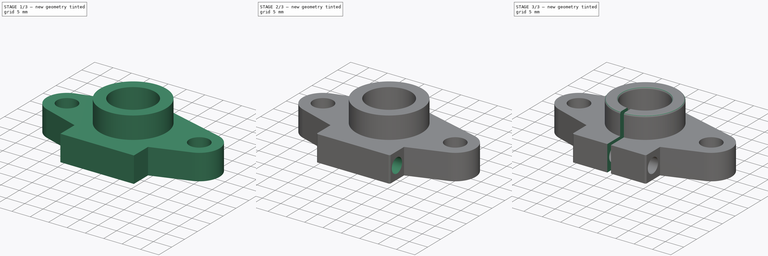
[diagram: build sequence overview — one tinted view per stage of 3, left to right]
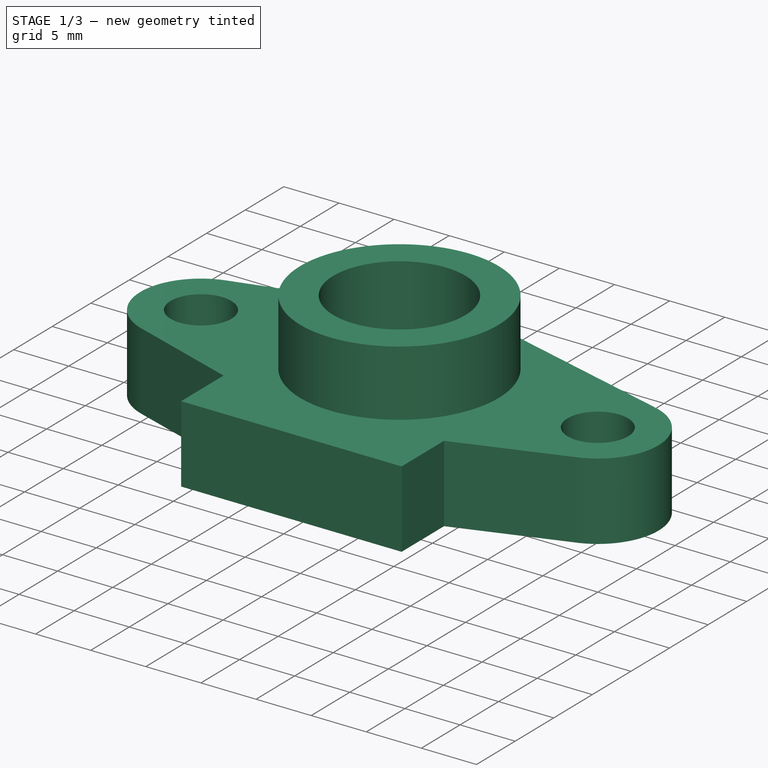
[diagram: stage 1 of 3 — iso view after this stage's code; geometry added in this stage tinted green]
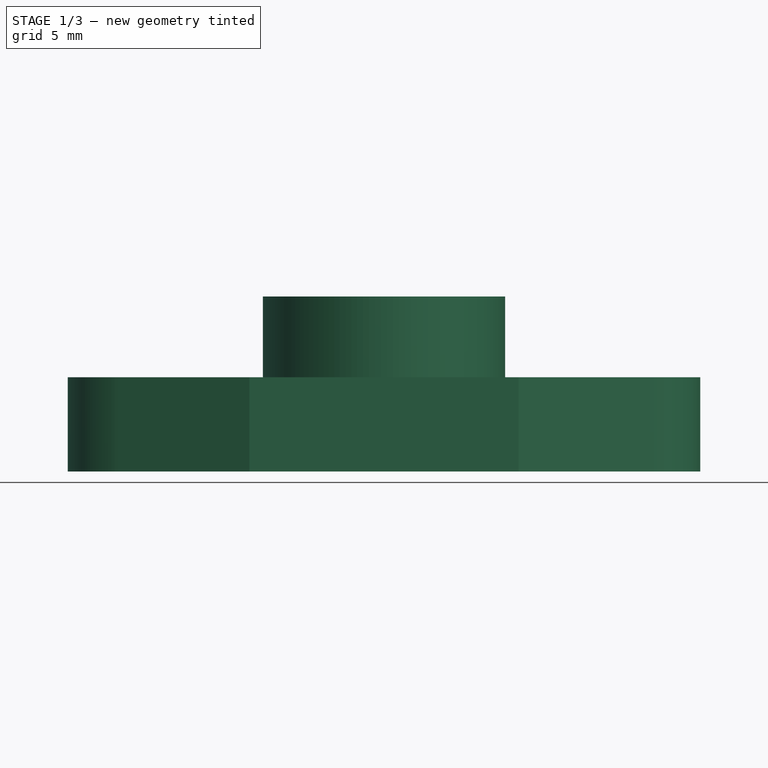
[diagram: stage 1 of 3 — front view after this stage's code; geometry added in this stage tinted green]
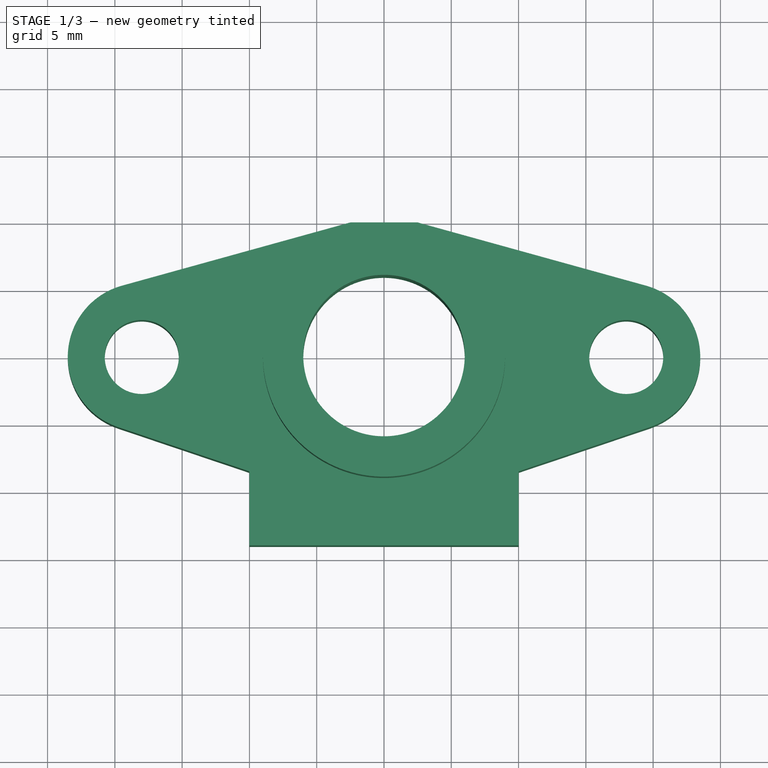
[diagram: stage 1 of 3 — top view after this stage's code; geometry added in this stage tinted green]
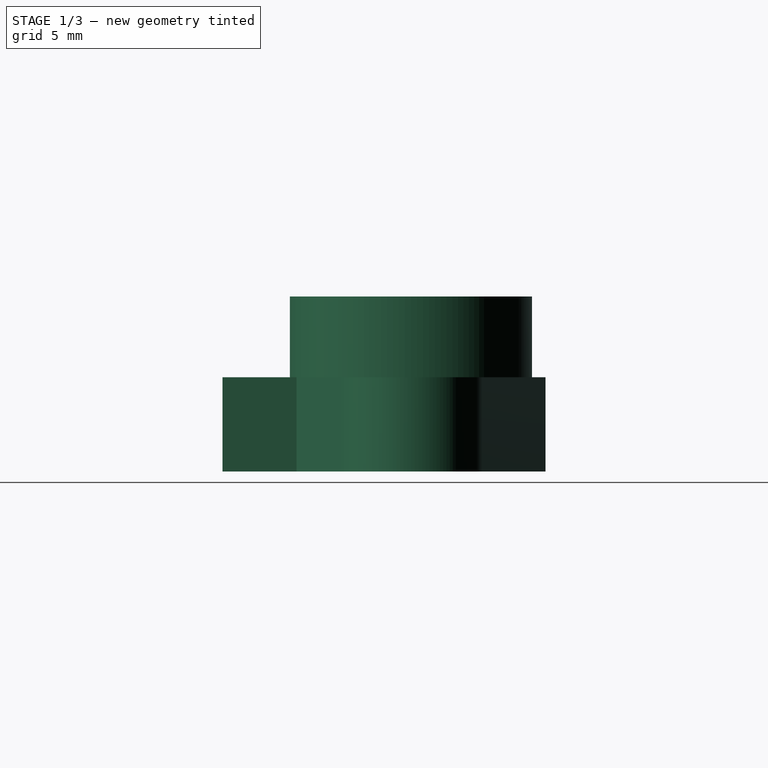
[diagram: stage 1 of 3 — right view after this stage's code; geometry added in this stage tinted green]
FCSTD DOCUMENT  (FreeCAD 1.0R39319 (Git))
Label: ShaftSupport__SHF12
License: All rights reserved
LicenseURL: http://en.wikipedia.org/wiki/All_rights_reserved
objects: Sketcher::SketchObject×4, PartDesign::Pad×2, PartDesign::Fillet×2, PartDesign::Pocket×2, PartDesign::Body×1
note: 27 computed .brp shape members not serialized (recipe doc carries the construction recipe); baked Part::Feature solids carry a one-line shape summary decoded from their .brp

FEATURE [Sketcher::SketchObject] Sketch
  ArcFitTolerance = 0
  AttachmentSupport = -> [XY_Plane]
  FullyConstrained = true
  MakeInternals = false
  MapMode = 5
  sketch-geometry (13):
    g0: Circle CenterX=0 CenterY=0 CenterZ=0 NormalX=0 NormalY=0 NormalZ=1 AngleXU=0 Radius=6
    g1: Circle CenterX=18 CenterY=0 CenterZ=0 NormalX=0 NormalY=0 NormalZ=1 AngleXU=0 Radius=2.75
    g2: Circle CenterX=-18 CenterY=0 CenterZ=0 NormalX=0 NormalY=0 NormalZ=1 AngleXU=0 Radius=2.75
    g3: LineSegment StartX=-2.5 StartY=10 StartZ=0 EndX=2.5 EndY=10 EndZ=0
    g4: ArcOfCircle CenterX=-18 CenterY=0 CenterZ=0 NormalX=0 NormalY=0 NormalZ=1 AngleXU=0 Radius=5.5 StartAngle=1.84099 EndAngle=4.38733
    g5: ArcOfCircle CenterX=18 CenterY=0 CenterZ=0 NormalX=0 NormalY=0 NormalZ=1 AngleXU=0 Radius=5.5 StartAngle=5.03744 EndAngle=7.58379
    g6: LineSegment StartX=19.468 StartY=5.30046 StartZ=0 EndX=2.5 EndY=10 EndZ=0
    g7: LineSegment StartX=-19.468 StartY=5.30046 StartZ=0 EndX=-2.5 EndY=10 EndZ=0
    g8: LineSegment StartX=-10 StartY=-14 StartZ=0 EndX=10 EndY=-14 EndZ=0
    g9: LineSegment StartX=-10 StartY=-14 StartZ=0 EndX=-10 EndY=-8.5 EndZ=0
    g10: LineSegment StartX=10 StartY=-14 StartZ=0 EndX=10 EndY=-8.5 EndZ=0
    g11: LineSegment StartX=19.7565 StartY=-5.21198 StartZ=0 EndX=10 EndY=-8.5 EndZ=0
    g12: LineSegment StartX=-10 StartY=-8.5 StartZ=0 EndX=-19.7565 EndY=-5.21198 EndZ=0
  constraints (30):
    c: Coincident(g0,g-1)
    c: Diameter(g0) = 12
    c: PointOnObject(g1,g-1)
    c: Symmetric(g2,g1,g-2)
    c: Equal(g1,g2)
    c: Diameter(g1) = 5.5
    c: DistanceX(g2,g1) = 36
    c: Symmetric(g3,g3,g-2)
    c: DistanceY(g3) = 10
    c: Coincident(g4,g2)
    c: Coincident(g5,g1)
    c: Coincident(g6,g3)
    c: Coincident(g7,g3)
    c: Equal(g4,g5)
    c: Diameter(g5) = 11
    c: Symmetric(g8,g8,g-2)
    c: DistanceX(g8,g8) = 20
    c: Tangent(g7,g4) = 1.5708
    c: DistanceX(g3,g3) = 5
    c: DistanceY(g8,g0) = 14
    c: Coincident(g9,g8)
    c: Vertical(g9)
    c: Coincident(g10,g8)
    c: Coincident(g11,g10)
    c: Coincident(g12,g9)
    c: Tangent(g12,g4) = 1.5708
    c: Tangent(g11,g5) = 1.5708
    c: Tangent(g6,g5) = -1.5708
    c: Symmetric(g9,g10,g-2)
    c: DistanceY(g10,g10) = 5.5
FEATURE [PartDesign::Pad] Pad
  AllowMultiFace = false
  Direction = (0,0,1)
  Length = 7
  Length2 = 100
  Midplane = true
  Profile = -> Sketch
  Suppressed = false
  Type = 0
FEATURE [Sketcher::SketchObject] Sketch003
  ArcFitTolerance = 0
  FullyConstrained = true
  MakeInternals = false
  MapMode = 5
  Placement = pos=(0,0,3.5) rot=(0,0,1;0rad)
  sketch-geometry (2):
    g0: Circle CenterX=0 CenterY=0 CenterZ=0 NormalX=0 NormalY=0 NormalZ=1 AngleXU=0 Radius=9
    g1: Circle CenterX=0 CenterY=0 CenterZ=0 NormalX=0 NormalY=0 NormalZ=1 AngleXU=0 Radius=6
  constraints (4):
    c: Coincident(g0,g-1)
    c: Coincident(g1,g0)
    c: Diameter(g1) = 12
    c: Diameter(g0) = 18
FEATURE [PartDesign::Pad] Pad001
  AllowMultiFace = false
  BaseFeature = -> Pad
  Direction = (0,0,1)
  Length = 6
  Length2 = 100
  Profile = -> Sketch003
  Suppressed = false
  Type = 0
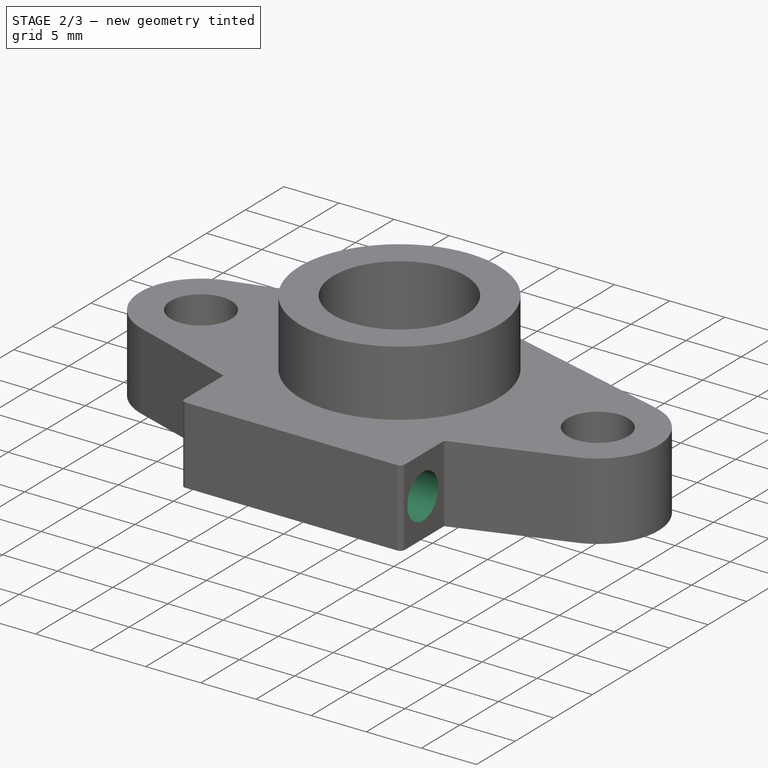
[diagram: stage 2 of 3 — iso view after this stage's code; geometry added in this stage tinted green]
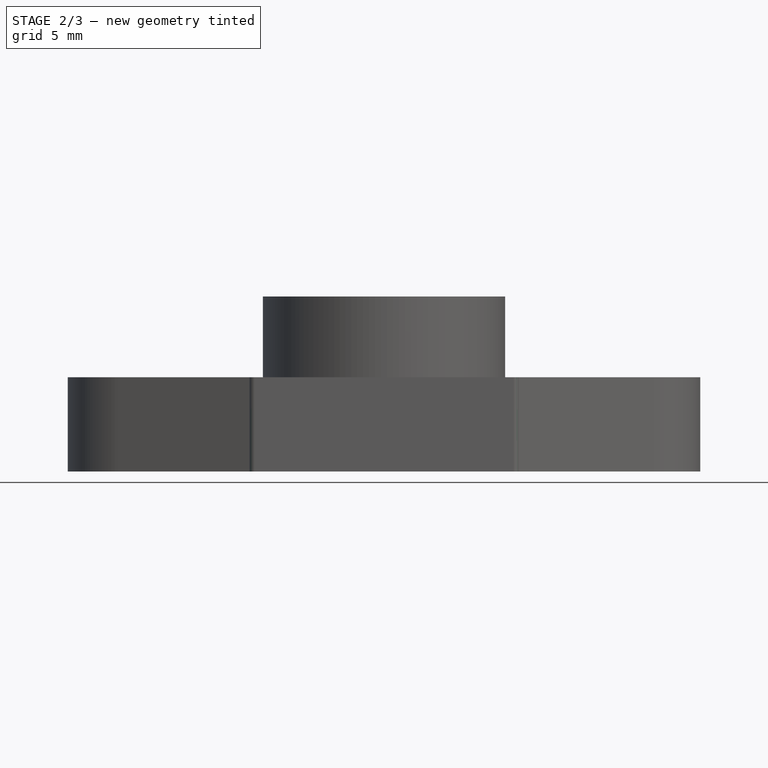
[diagram: stage 2 of 3 — front view after this stage's code; geometry added in this stage tinted green]
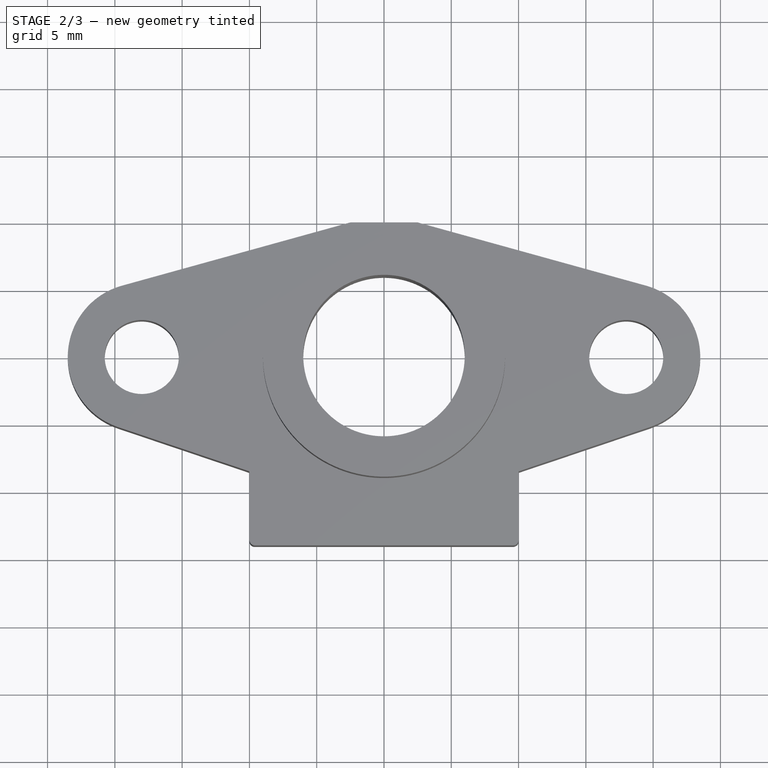
[diagram: stage 2 of 3 — top view after this stage's code; geometry added in this stage tinted green]
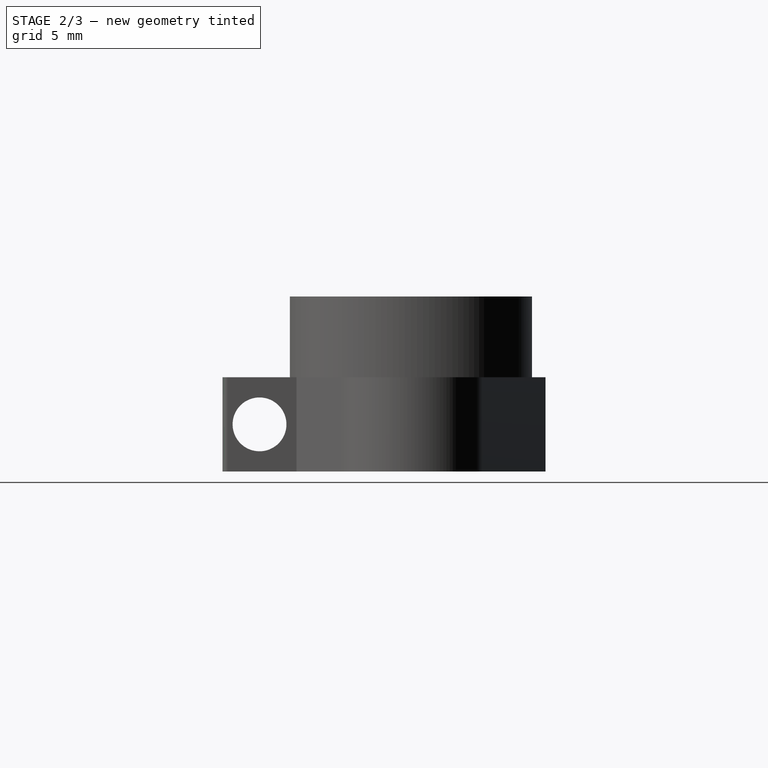
[diagram: stage 2 of 3 — right view after this stage's code; geometry added in this stage tinted green]
FEATURE [Sketcher::SketchObject] Sketch004
  ArcFitTolerance = 0
  AttachmentSupport = -> [Pad001]
  FullyConstrained = true
  MakeInternals = false
  MapMode = 5
  Placement = pos=(10,0,0) rot=(0.57735,0.57735,0.57735;2.0944rad)
  sketch-geometry (1):
    g0: Circle CenterX=-11.25 CenterY=0 CenterZ=0 NormalX=0 NormalY=0 NormalZ=1 AngleXU=0 Radius=2
  constraints (3):
    c: PointOnObject(g0,g-1)
    c: Diameter(g0) = 4
    c: DistanceX(g0,g-1) = 11.25
FEATURE [PartDesign::Fillet] Fillet
  Base = -> Pad001 [Edge35,Edge36]
  BaseFeature = -> Pad001
  Radius = 0.4
  Refine = true
  SupportTransform = false
  Suppressed = false
  UseAllEdges = false
FEATURE [PartDesign::Pocket] Pocket
  AllowMultiFace = false
  BaseFeature = -> Fillet
  Direction = (-1,0,0)
  Length = 5
  Length2 = 100
  Profile = -> Sketch004
  Suppressed = false
  Type = 1
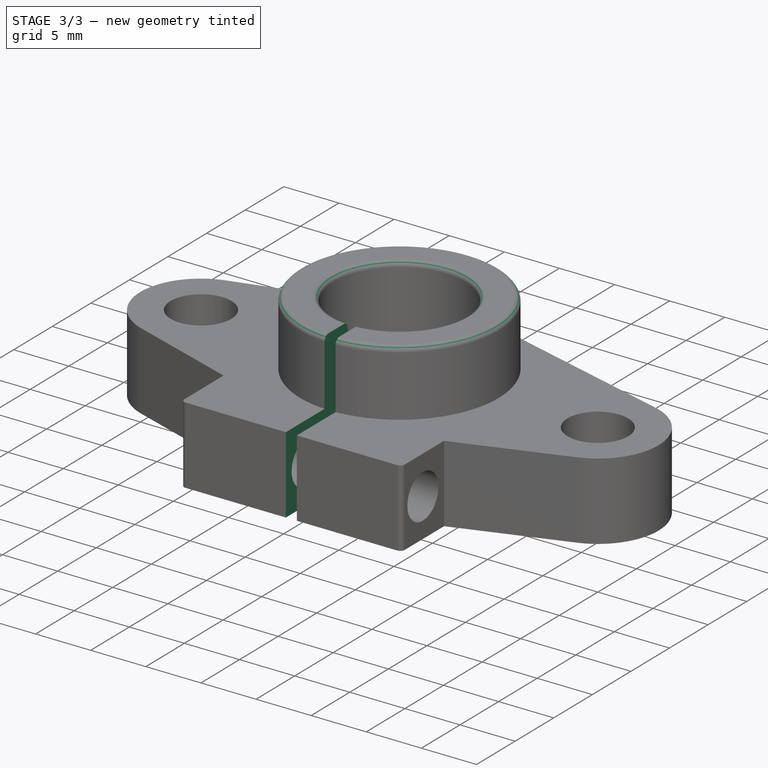
[diagram: stage 3 of 3 — iso view after this stage's code; geometry added in this stage tinted green]
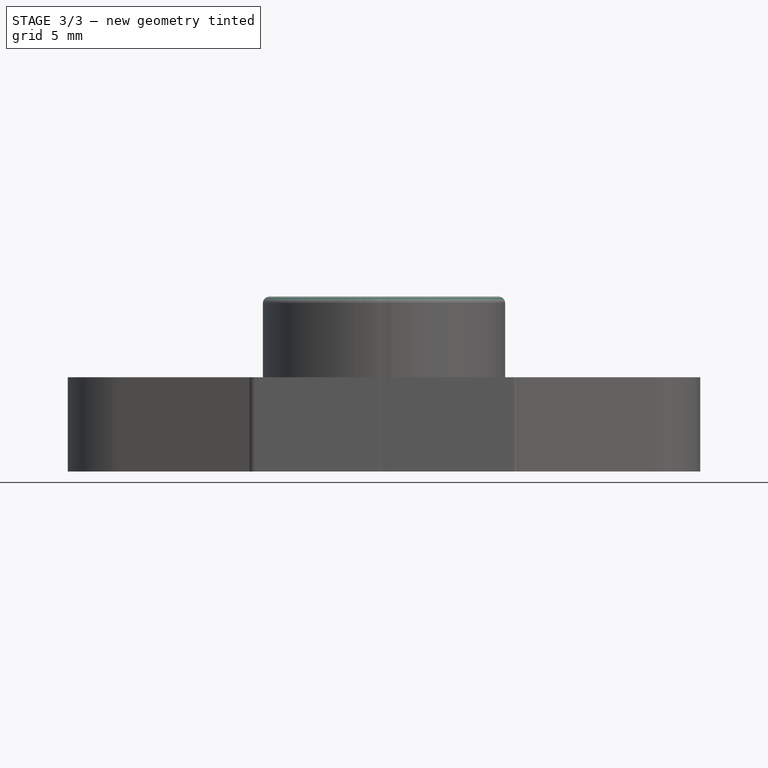
[diagram: stage 3 of 3 — front view after this stage's code; geometry added in this stage tinted green]
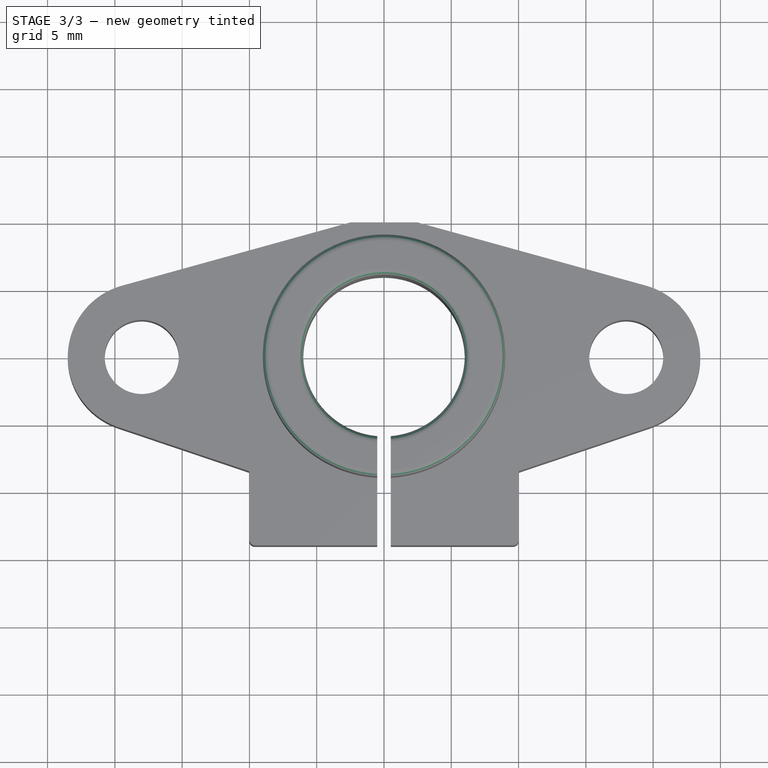
[diagram: stage 3 of 3 — top view after this stage's code; geometry added in this stage tinted green]
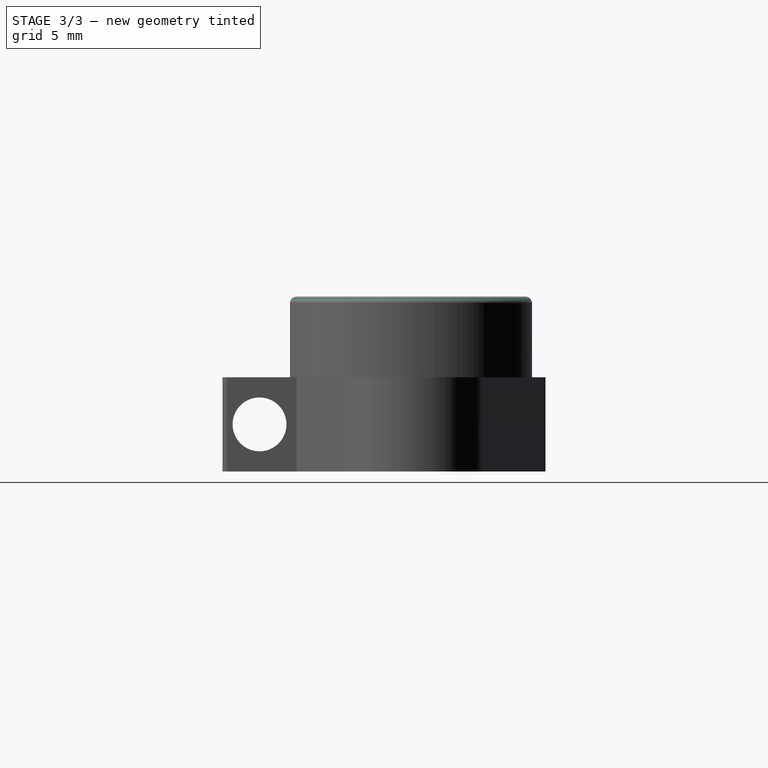
[diagram: stage 3 of 3 — right view after this stage's code; geometry added in this stage tinted green]
FEATURE [PartDesign::Fillet] Fillet001
  Base = -> Pocket [Edge50,Edge42]
  BaseFeature = -> Pocket
  Radius = 0.5
  Refine = true
  SupportTransform = false
  Suppressed = false
  UseAllEdges = false
FEATURE [Sketcher::SketchObject] Sketch005
  ArcFitTolerance = 0
  AttachmentSupport = -> [Fillet001]
  FullyConstrained = true
  MakeInternals = false
  MapMode = 5
  Placement = pos=(0,0,-3.5) rot=(1,0,0;3.14159rad)
  sketch-geometry (4):
    g0: LineSegment StartX=-0.5 StartY=15 StartZ=0 EndX=0.5 EndY=15 EndZ=0
    g1: LineSegment StartX=0.5 StartY=15 StartZ=0 EndX=0.5 EndY=5 EndZ=0
    g2: LineSegment StartX=0.5 StartY=5 StartZ=0 EndX=-0.5 EndY=5 EndZ=0
    g3: LineSegment StartX=-0.5 StartY=5 StartZ=0 EndX=-0.5 EndY=15 EndZ=0
  constraints (11):
    c: Coincident(g0,g1)
    c: Coincident(g1,g2)
    c: Coincident(g2,g3)
    c: Coincident(g3,g0)
    c: Horizontal(g2)
    c: Vertical(g1)
    c: Vertical(g3)
    c: Symmetric(g0,g0,g-2)
    c: DistanceX(g0,g0) = 1
    c: DistanceY(g1,g1) = 10
    c: DistanceY(g-1,g1) = 5
FEATURE [PartDesign::Pocket] Pocket001
  AllowMultiFace = false
  BaseFeature = -> Fillet001
  Direction = (0,0,1)
  Length = 5
  Length2 = 100
  Profile = -> Sketch005
  Suppressed = false
  Type = 1
FEATURE [PartDesign::Body] Body
  AllowCompound = false
  Group = -> [Sketch,Pad,Sketch003,Pad001,Sketch004,Fillet,Pocket,Fillet001,Sketch005,Pocket001]
  Origin = -> Origin
  Tip = -> Pocket001
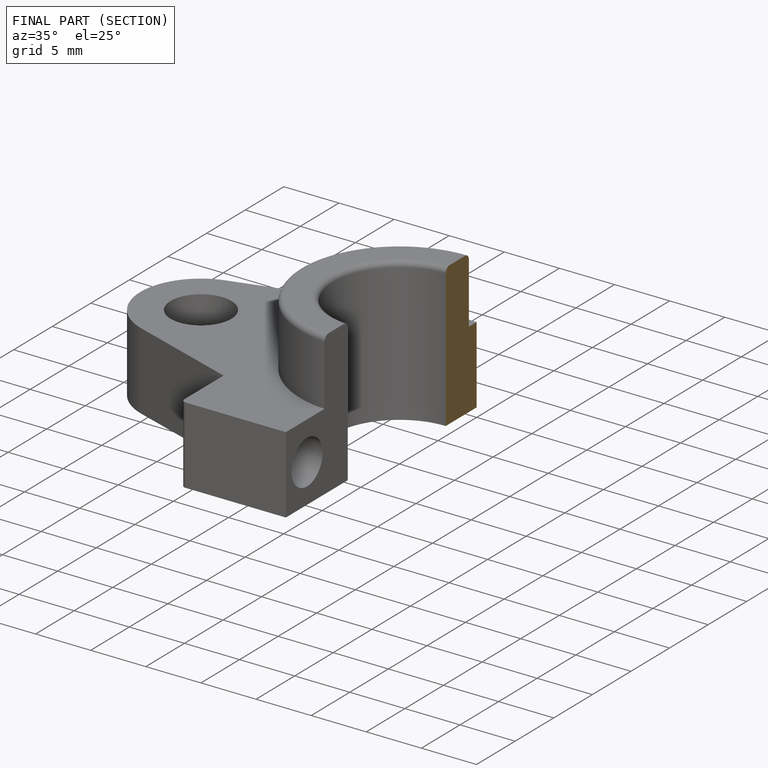
[diagram: finished part — half-section view (interior)]
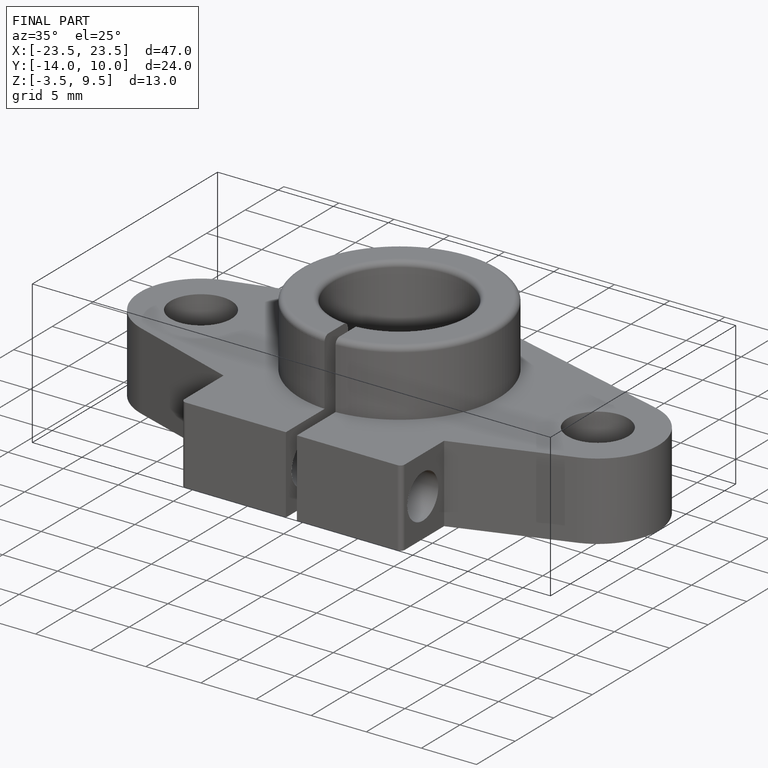
[diagram: finished part — iso view with bounding-box wireframe]
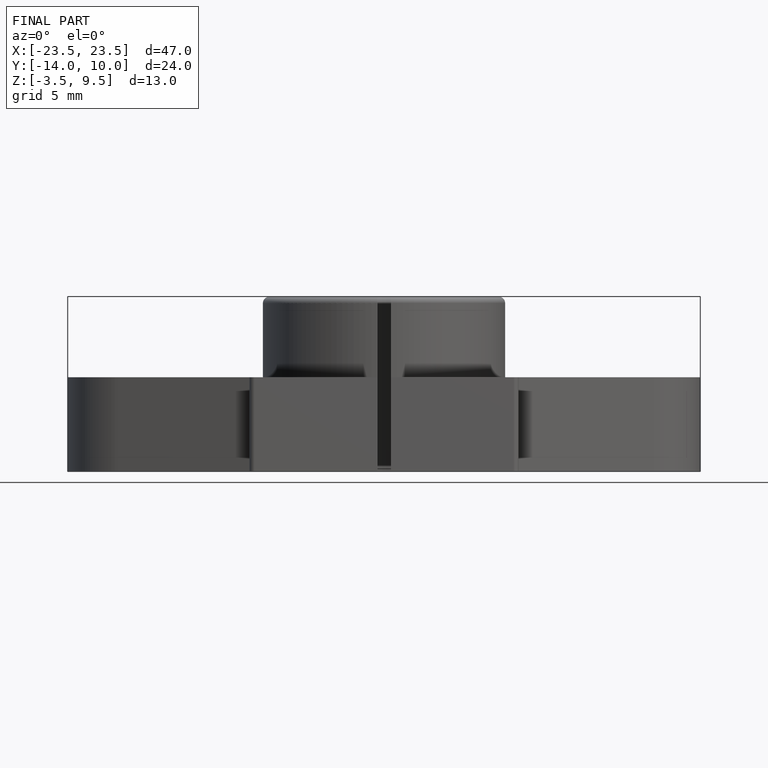
[diagram: finished part — front view with bounding-box wireframe]
